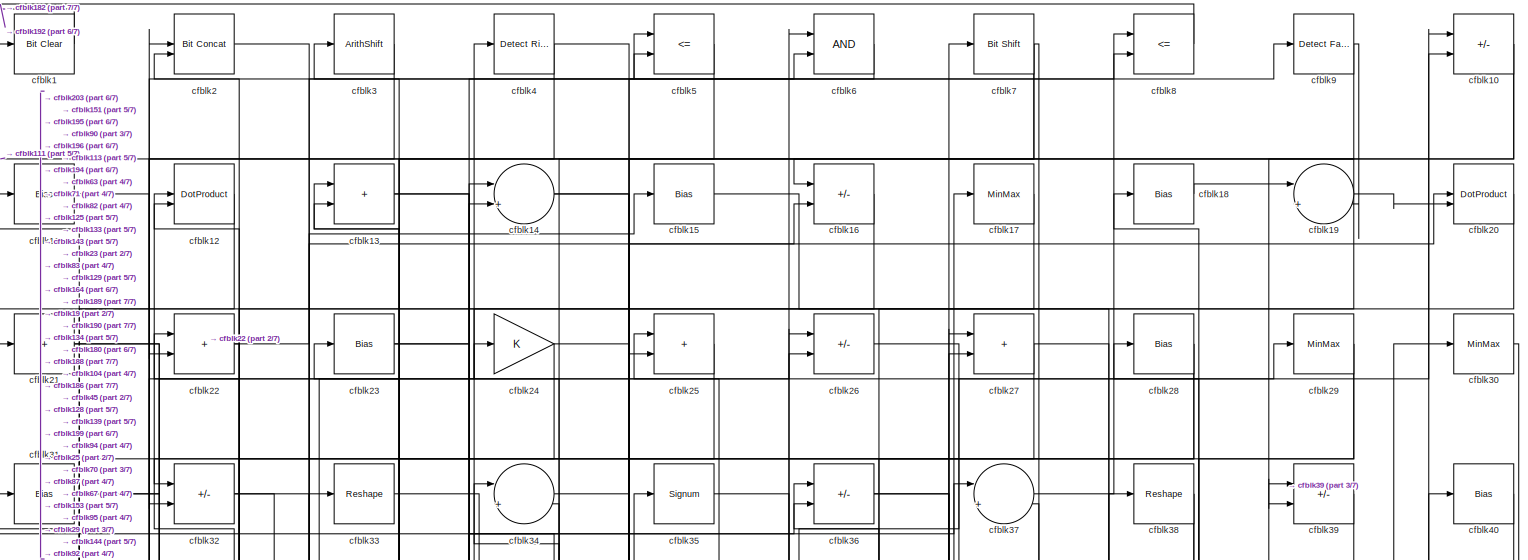
[diagram: root canvas - part 1/7, full width, top band]
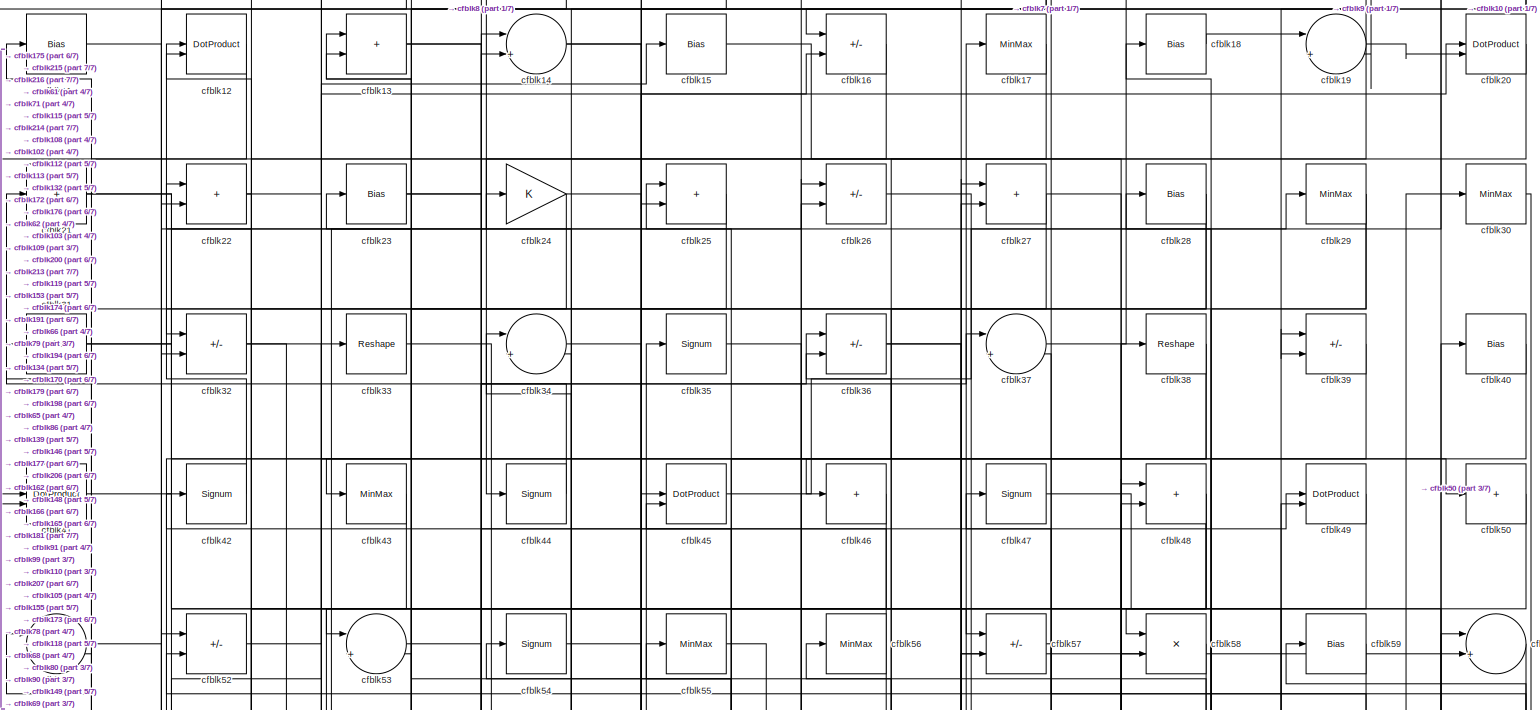
[diagram: root canvas - part 2/7, full width, top band]
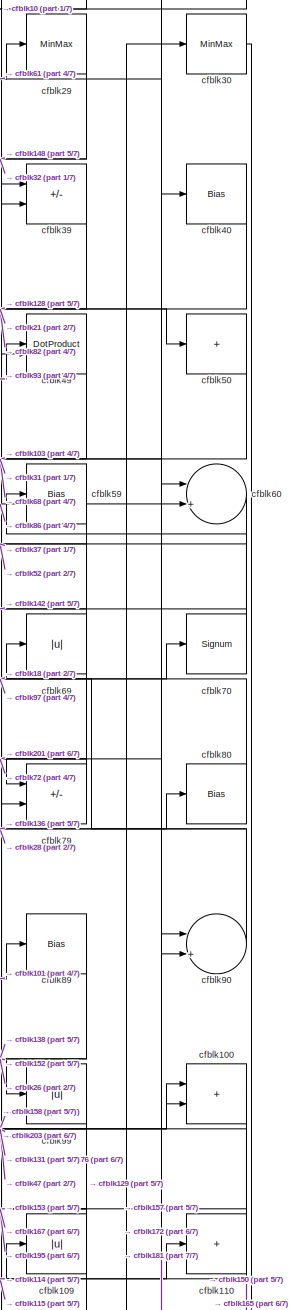
[diagram: root canvas - part 3/7, top right region]
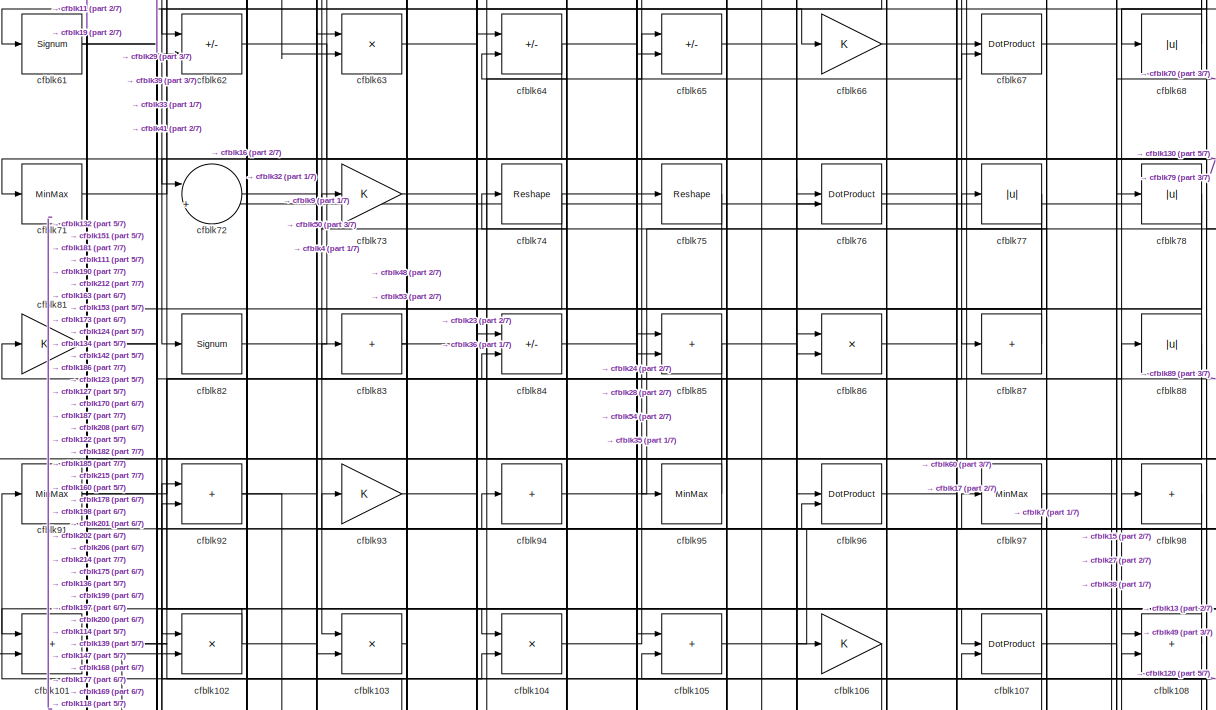
[diagram: root canvas - part 4/7, full width, middle band]
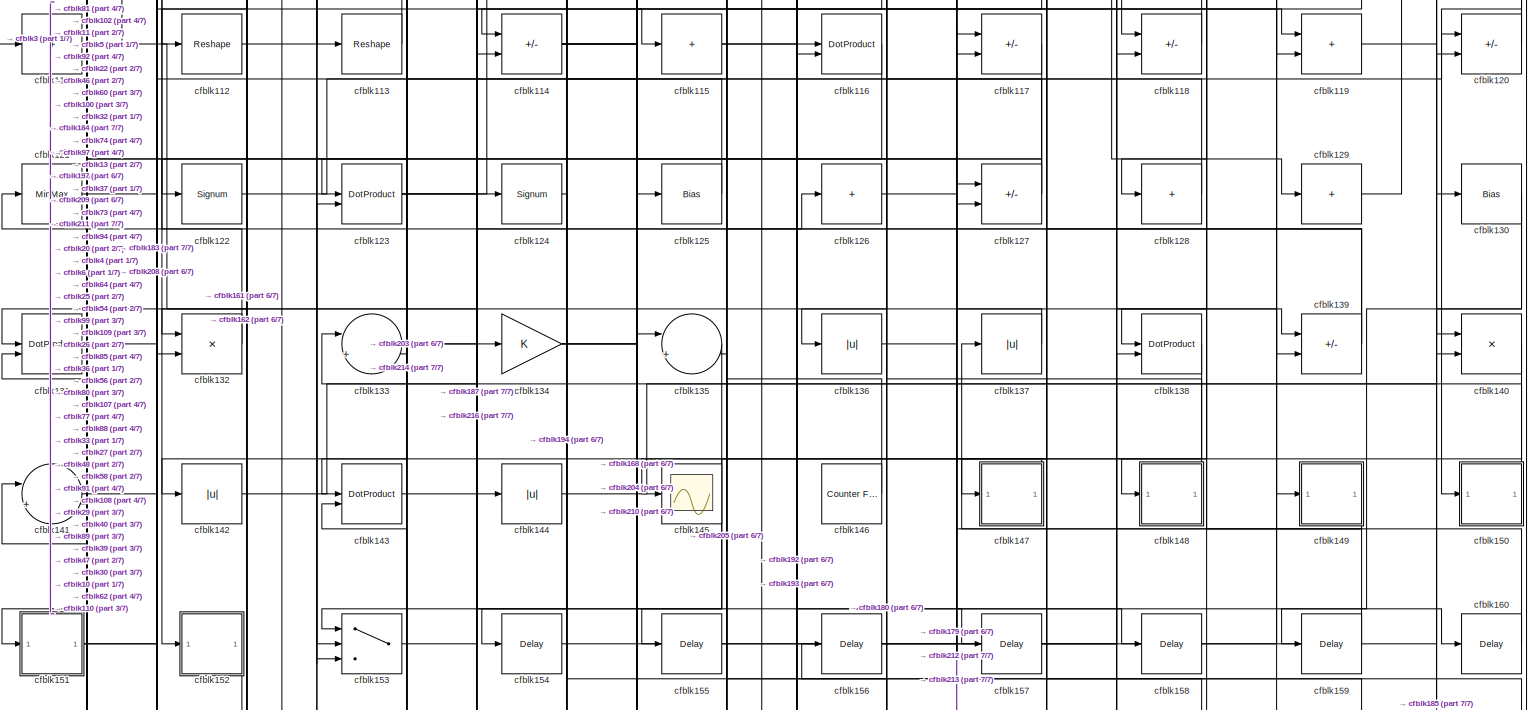
[diagram: root canvas - part 5/7, full width, middle band]
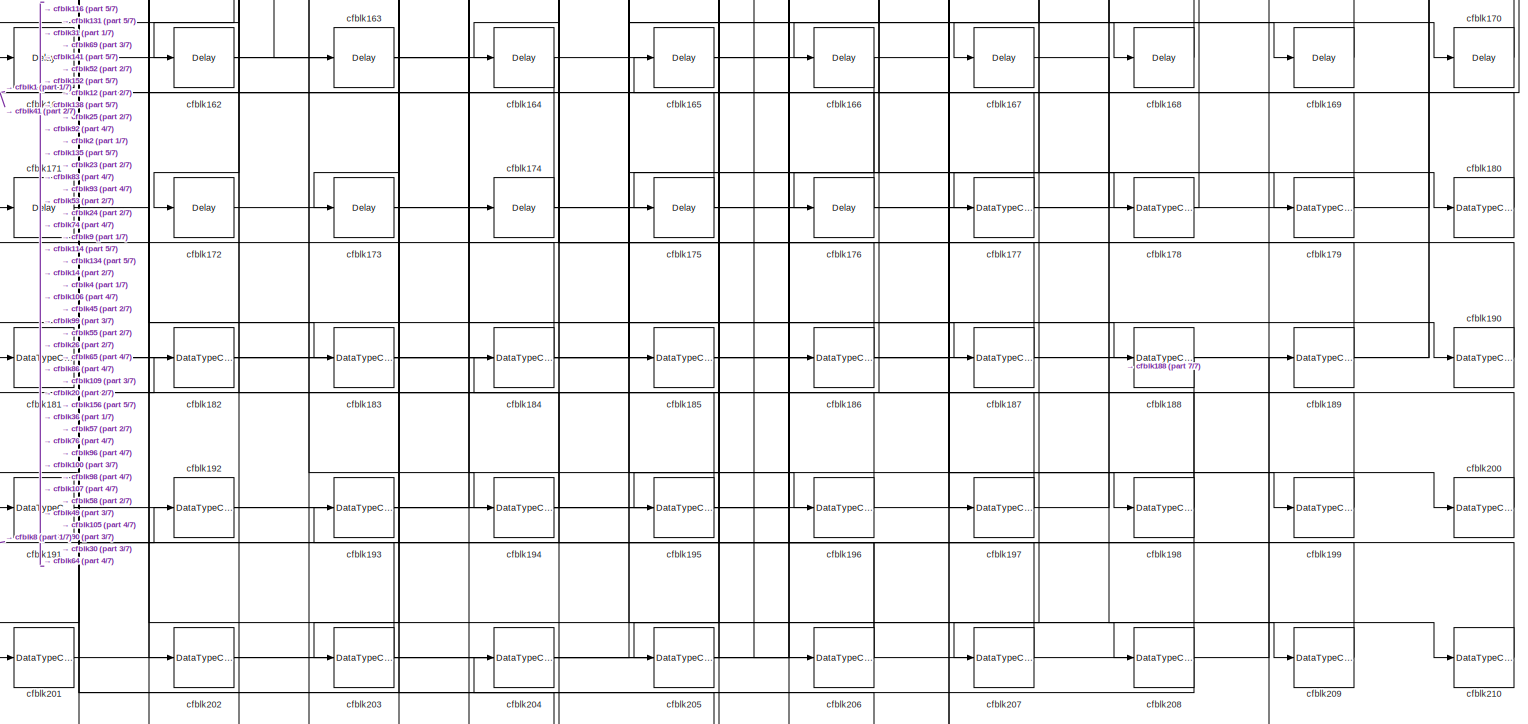
[diagram: root canvas - part 6/7, full width, bottom band]
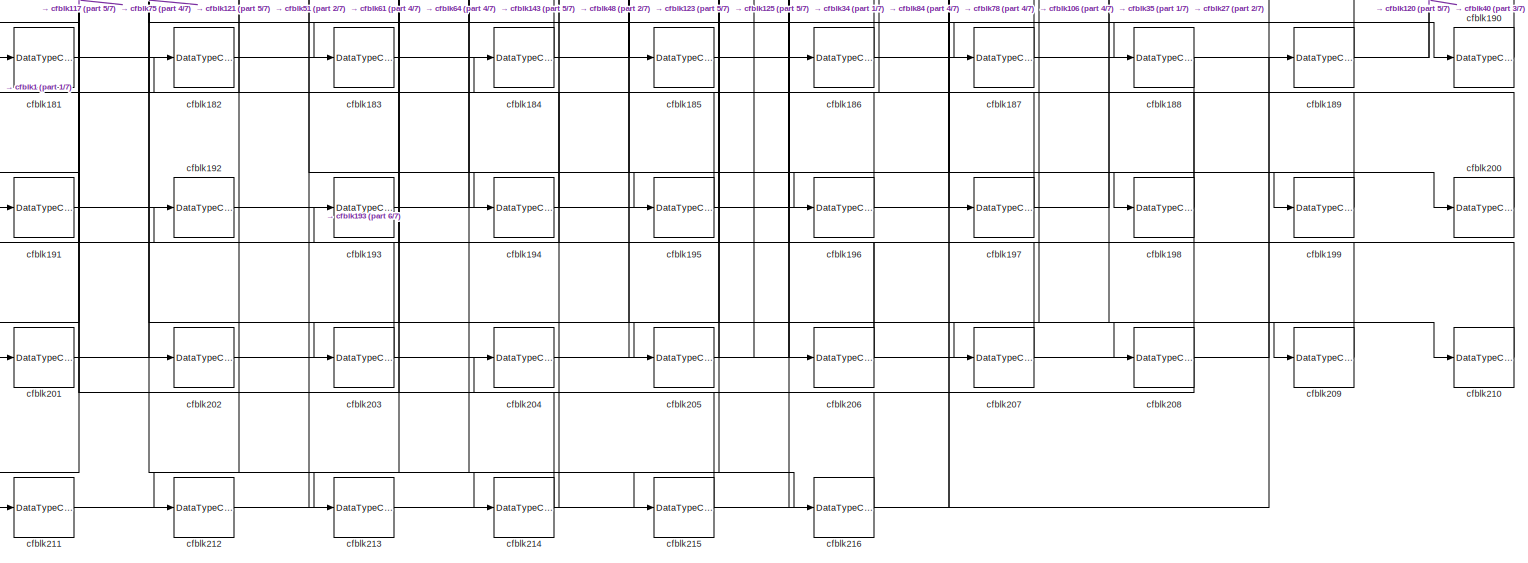
[diagram: root canvas - part 7/7, full width, bottom band]
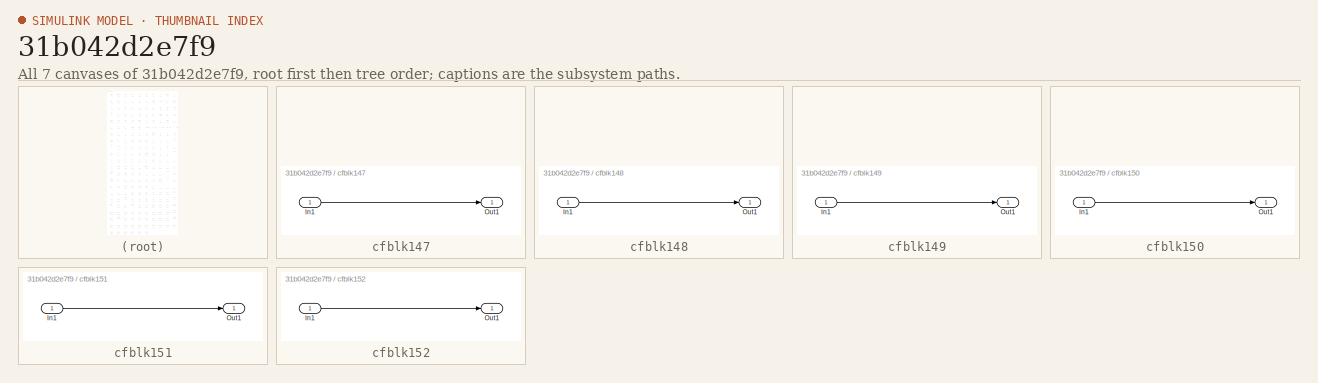
[diagram: thumbnail index - all 7 canvases of the model, root first then tree order]
MODEL slx_31b042d2e7f9
KIND model
CONFIG AbsTol = auto
CONFIG EnableMultiTasking = off
CONFIG FixedStep = auto
CONFIG MaxStep = auto
CONFIG MinStep = auto
CONFIG RelTol = 1e-3
CONFIG SampleTimeConstraint = Unconstrained
CONFIG SolverName = VariableStepAuto
CONFIG StartTime = 0.0
CONFIG StopTime = 10.0
BLOCK [Reference] cfblk1  REF=simulink/Logic and Bit
Operations/Bit Clear
  LibrarySourceBlock = hdlsllib/Logic and Bit\nOperations/Bit Clear
  SourceBlock = simulink/Logic and Bit\nOperations/Bit Clear
  SourceType = Bit Clear
BLOCK [Sum] cfblk10
  IconShape = rectangular
  Inputs = +-
BLOCK [Sum] cfblk100
  IconShape = rectangular
BLOCK [Sum] cfblk101
  IconShape = rectangular
BLOCK [Product] cfblk102
  Inputs = */
  RndMeth = Zero
  SaturateOnIntegerOverflow = on
BLOCK [Product] cfblk103
  Inputs = */
  RndMeth = Zero
  SaturateOnIntegerOverflow = on
BLOCK [Product] cfblk104
  Inputs = */
  RndMeth = Zero
  SaturateOnIntegerOverflow = on
BLOCK [Sum] cfblk105
  IconShape = rectangular
BLOCK [Gain] cfblk106
BLOCK [DotProduct] cfblk107
  OutDataTypeStr = Inherit: Inherit via internal rule
BLOCK [Sum] cfblk108
  IconShape = rectangular
BLOCK [Abs] cfblk109
  SaturateOnIntegerOverflow = off
BLOCK [Bias] cfblk11
  Bias = 0.0
  SaturateOnIntegerOverflow = off
BLOCK [Sum] cfblk110
  IconShape = rectangular
  Inputs = +
BLOCK [Sum] cfblk111
  IconShape = rectangular
  Inputs = +
BLOCK [Reshape] cfblk112
BLOCK [Reshape] cfblk113
BLOCK [Sum] cfblk114
  IconShape = rectangular
  Inputs = +-
BLOCK [Sum] cfblk115
  IconShape = rectangular
  Inputs = +
BLOCK [DotProduct] cfblk116
  OutDataTypeStr = Inherit: Inherit via internal rule
BLOCK [Sum] cfblk117
  IconShape = rectangular
  Inputs = +-
BLOCK [Sum] cfblk118
  IconShape = rectangular
  Inputs = +-
BLOCK [Sum] cfblk119
  IconShape = rectangular
BLOCK [DotProduct] cfblk12
  OutDataTypeStr = Inherit: Inherit via internal rule
BLOCK [Sum] cfblk120
  IconShape = rectangular
  Inputs = +-
BLOCK [MinMax] cfblk121
BLOCK [Signum] cfblk122
BLOCK [DotProduct] cfblk123
  OutDataTypeStr = Inherit: Inherit via internal rule
BLOCK [Signum] cfblk124
BLOCK [Bias] cfblk125
  Bias = 0.0
  SaturateOnIntegerOverflow = off
BLOCK [Sum] cfblk126
  IconShape = rectangular
  Inputs = +
BLOCK [Sum] cfblk127
  IconShape = rectangular
  Inputs = +-
BLOCK [Sum] cfblk128
  IconShape = rectangular
  Inputs = +
BLOCK [Sum] cfblk129
  IconShape = rectangular
  Inputs = +
BLOCK [Sum] cfblk13
  IconShape = rectangular
BLOCK [Bias] cfblk130
  Bias = 0.0
  SaturateOnIntegerOverflow = off
BLOCK [DotProduct] cfblk131
  OutDataTypeStr = Inherit: Inherit via internal rule
BLOCK [Product] cfblk132
  Inputs = */
  RndMeth = Zero
  SaturateOnIntegerOverflow = on
BLOCK [Sum] cfblk133
  Inputs = |++
BLOCK [Gain] cfblk134
BLOCK [Sum] cfblk135
  Inputs = |++
BLOCK [Abs] cfblk136
  SaturateOnIntegerOverflow = off
BLOCK [Abs] cfblk137
  SaturateOnIntegerOverflow = off
BLOCK [DotProduct] cfblk138
  OutDataTypeStr = Inherit: Inherit via internal rule
BLOCK [Sum] cfblk139
  IconShape = rectangular
  Inputs = +-
BLOCK [Sum] cfblk14
  Inputs = |++
BLOCK [Product] cfblk140
  Inputs = */
  RndMeth = Zero
  SaturateOnIntegerOverflow = on
BLOCK [Sum] cfblk141
  Inputs = |++
BLOCK [Abs] cfblk142
  SaturateOnIntegerOverflow = off
BLOCK [DotProduct] cfblk143
  OutDataTypeStr = Inherit: Inherit via internal rule
BLOCK [Abs] cfblk144
  SaturateOnIntegerOverflow = off
BLOCK [Scope] cfblk145
  Floating = off
  NumInputPorts = 1
  ScopeSpecificationString = Simulink.scopes.TimeScopeBlockCfg('CurrentConfiguration', extmgr.ConfigurationSet(extmgr.Configuration('Core','General UI',true),extmgr.Configuration('Core','Source UI',true),extmgr.Configuration('Sources','WiredSimulink',true,'DataLoggingVariableName','ScopeData2','DataLoggingSaveFormat','Array','DataLoggingLimitDataPoints',true,'DataLoggingDecimation','1'),extmgr.Configuration('Visuals','Time Do...<+868ch>
BLOCK [Reference] cfblk146  REF=hdlsllib/Sources/Counter
Free-Running
  SourceBlock = hdlsllib/Sources/Counter\nFree-Running
  SourceType = Counter Free-Running
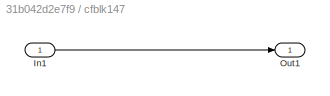
BLOCK [SubSystem] cfblk147
  LibrarySourceBlock = hdlsllib/Ports &\nSubsystems/Subsystem
BLOCK [Inport] cfblk147/In1
BLOCK [Outport] cfblk147/Out1
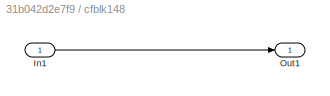
BLOCK [SubSystem] cfblk148
  LibrarySourceBlock = hdlsllib/Ports &\nSubsystems/Subsystem
BLOCK [Inport] cfblk148/In1
BLOCK [Outport] cfblk148/Out1
BLOCK [SubSystem] cfblk149
  LibrarySourceBlock = hdlsllib/Ports &\nSubsystems/Subsystem
BLOCK [Inport] cfblk149/In1
BLOCK [Outport] cfblk149/Out1
BLOCK [Bias] cfblk15
  Bias = 0.0
  SaturateOnIntegerOverflow = off
BLOCK [SubSystem] cfblk150
  LibrarySourceBlock = hdlsllib/Ports &\nSubsystems/Subsystem
BLOCK [Inport] cfblk150/In1
BLOCK [Outport] cfblk150/Out1
BLOCK [SubSystem] cfblk151
  LibrarySourceBlock = hdlsllib/Ports &\nSubsystems/Subsystem
BLOCK [Inport] cfblk151/In1
BLOCK [Outport] cfblk151/Out1
BLOCK [SubSystem] cfblk152
  LibrarySourceBlock = hdlsllib/Ports &\nSubsystems/Subsystem
BLOCK [Inport] cfblk152/In1
BLOCK [Outport] cfblk152/Out1
BLOCK [Switch] cfblk153
  InputSameDT = off
  SaturateOnIntegerOverflow = off
BLOCK [Delay] cfblk154
  InputPortMap = u0
  SampleTime = 1
BLOCK [Delay] cfblk155
  InputPortMap = u0
  SampleTime = 1
BLOCK [Delay] cfblk156
  InputPortMap = u0
  SampleTime = 1
BLOCK [Delay] cfblk157
  InputPortMap = u0
  SampleTime = 1
BLOCK [Delay] cfblk158
  InputPortMap = u0
  SampleTime = 1
BLOCK [Delay] cfblk159
  InputPortMap = u0
  SampleTime = 1
BLOCK [Sum] cfblk16
  IconShape = rectangular
  Inputs = +-
BLOCK [Delay] cfblk160
  InputPortMap = u0
  SampleTime = 1
BLOCK [Delay] cfblk161
  InputPortMap = u0
  SampleTime = 1
BLOCK [Delay] cfblk162
  InputPortMap = u0
  SampleTime = 1
BLOCK [Delay] cfblk163
  InputPortMap = u0
  SampleTime = 1
BLOCK [Delay] cfblk164
  InputPortMap = u0
  SampleTime = 1
BLOCK [Delay] cfblk165
  InputPortMap = u0
  SampleTime = 1
BLOCK [Delay] cfblk166
  InputPortMap = u0
  SampleTime = 1
BLOCK [Delay] cfblk167
  InputPortMap = u0
  SampleTime = 1
BLOCK [Delay] cfblk168
  InputPortMap = u0
  SampleTime = 1
BLOCK [Delay] cfblk169
  InputPortMap = u0
  SampleTime = 1
BLOCK [MinMax] cfblk17
BLOCK [Delay] cfblk170
  InputPortMap = u0
  SampleTime = 1
BLOCK [Delay] cfblk171
  InputPortMap = u0
  SampleTime = 1
BLOCK [Delay] cfblk172
  InputPortMap = u0
  SampleTime = 1
BLOCK [Delay] cfblk173
  InputPortMap = u0
  SampleTime = 1
BLOCK [Delay] cfblk174
  InputPortMap = u0
  SampleTime = 1
BLOCK [Delay] cfblk175
  InputPortMap = u0
  SampleTime = 1
BLOCK [Delay] cfblk176
  InputPortMap = u0
  SampleTime = 1
BLOCK [DataTypeConversion] cfblk177
  OutDataTypeStr = uint8
  RndMeth = Floor
  SaturateOnIntegerOverflow = off
BLOCK [DataTypeConversion] cfblk178
  OutDataTypeStr = uint8
  RndMeth = Floor
  SaturateOnIntegerOverflow = off
BLOCK [DataTypeConversion] cfblk179
  OutDataTypeStr = uint8
  RndMeth = Floor
  SaturateOnIntegerOverflow = off
BLOCK [Bias] cfblk18
  Bias = 0.0
  SaturateOnIntegerOverflow = off
BLOCK [DataTypeConversion] cfblk180
  OutDataTypeStr = uint8
  RndMeth = Floor
  SaturateOnIntegerOverflow = off
BLOCK [DataTypeConversion] cfblk181
  RndMeth = Floor
  SaturateOnIntegerOverflow = off
BLOCK [DataTypeConversion] cfblk182
  OutDataTypeStr = uint8
  RndMeth = Floor
  SaturateOnIntegerOverflow = off
BLOCK [DataTypeConversion] cfblk183
  OutDataTypeStr = uint8
  RndMeth = Floor
  SaturateOnIntegerOverflow = off
BLOCK [DataTypeConversion] cfblk184
  OutDataTypeStr = uint8
  RndMeth = Floor
  SaturateOnIntegerOverflow = off
BLOCK [DataTypeConversion] cfblk185
  OutDataTypeStr = uint8
  RndMeth = Floor
  SaturateOnIntegerOverflow = off
BLOCK [DataTypeConversion] cfblk186
  OutDataTypeStr = uint8
  RndMeth = Floor
  SaturateOnIntegerOverflow = off
BLOCK [DataTypeConversion] cfblk187
  OutDataTypeStr = uint8
  RndMeth = Floor
  SaturateOnIntegerOverflow = off
BLOCK [DataTypeConversion] cfblk188
  OutDataTypeStr = uint8
  RndMeth = Floor
  SaturateOnIntegerOverflow = off
BLOCK [DataTypeConversion] cfblk189
  OutDataTypeStr = uint8
  RndMeth = Floor
  SaturateOnIntegerOverflow = off
BLOCK [Sum] cfblk19
  Inputs = |++
BLOCK [DataTypeConversion] cfblk190
  OutDataTypeStr = uint8
  RndMeth = Floor
  SaturateOnIntegerOverflow = off
BLOCK [DataTypeConversion] cfblk191
  RndMeth = Floor
  SaturateOnIntegerOverflow = off
BLOCK [DataTypeConversion] cfblk192
  OutDataTypeStr = uint8
  RndMeth = Floor
  SaturateOnIntegerOverflow = off
BLOCK [DataTypeConversion] cfblk193
  OutDataTypeStr = uint8
  RndMeth = Floor
  SaturateOnIntegerOverflow = off
BLOCK [DataTypeConversion] cfblk194
  RndMeth = Floor
  SaturateOnIntegerOverflow = off
BLOCK [DataTypeConversion] cfblk195
  OutDataTypeStr = uint8
  RndMeth = Floor
  SaturateOnIntegerOverflow = off
BLOCK [DataTypeConversion] cfblk196
  OutDataTypeStr = uint8
  RndMeth = Floor
  SaturateOnIntegerOverflow = off
BLOCK [DataTypeConversion] cfblk197
  OutDataTypeStr = uint8
  RndMeth = Floor
  SaturateOnIntegerOverflow = off
BLOCK [DataTypeConversion] cfblk198
  OutDataTypeStr = uint8
  RndMeth = Floor
  SaturateOnIntegerOverflow = off
BLOCK [DataTypeConversion] cfblk199
  OutDataTypeStr = uint8
  RndMeth = Floor
  SaturateOnIntegerOverflow = off
BLOCK [Reference] cfblk2  REF=hdlsllib/Logic and Bit
Operations/Bit Concat
  SourceBlock = hdlsllib/Logic and Bit\nOperations/Bit Concat
  SourceType = Bit Concat
BLOCK [DotProduct] cfblk20
  OutDataTypeStr = Inherit: Inherit via internal rule
BLOCK [DataTypeConversion] cfblk200
  OutDataTypeStr = uint8
  RndMeth = Floor
  SaturateOnIntegerOverflow = off
BLOCK [DataTypeConversion] cfblk201
  OutDataTypeStr = uint8
  RndMeth = Floor
  SaturateOnIntegerOverflow = off
BLOCK [DataTypeConversion] cfblk202
  OutDataTypeStr = uint8
  RndMeth = Floor
  SaturateOnIntegerOverflow = off
BLOCK [DataTypeConversion] cfblk203
  RndMeth = Floor
  SaturateOnIntegerOverflow = off
BLOCK [DataTypeConversion] cfblk204
  OutDataTypeStr = uint8
  RndMeth = Floor
  SaturateOnIntegerOverflow = off
BLOCK [DataTypeConversion] cfblk205
  OutDataTypeStr = uint8
  RndMeth = Floor
  SaturateOnIntegerOverflow = off
BLOCK [DataTypeConversion] cfblk206
  RndMeth = Floor
  SaturateOnIntegerOverflow = off
BLOCK [DataTypeConversion] cfblk207
  OutDataTypeStr = uint8
  RndMeth = Floor
  SaturateOnIntegerOverflow = off
BLOCK [DataTypeConversion] cfblk208
  RndMeth = Floor
  SaturateOnIntegerOverflow = off
BLOCK [DataTypeConversion] cfblk209
  OutDataTypeStr = uint8
  RndMeth = Floor
  SaturateOnIntegerOverflow = off
BLOCK [Sum] cfblk21
  IconShape = rectangular
  Inputs = +
BLOCK [DataTypeConversion] cfblk210
  OutDataTypeStr = uint8
  RndMeth = Floor
  SaturateOnIntegerOverflow = off
BLOCK [DataTypeConversion] cfblk211
  RndMeth = Floor
  SaturateOnIntegerOverflow = off
BLOCK [DataTypeConversion] cfblk212
  OutDataTypeStr = uint8
  RndMeth = Floor
  SaturateOnIntegerOverflow = off
BLOCK [DataTypeConversion] cfblk213
  OutDataTypeStr = uint8
  RndMeth = Floor
  SaturateOnIntegerOverflow = off
BLOCK [DataTypeConversion] cfblk214
  RndMeth = Floor
  SaturateOnIntegerOverflow = off
BLOCK [DataTypeConversion] cfblk215
  OutDataTypeStr = uint8
  RndMeth = Floor
  SaturateOnIntegerOverflow = off
BLOCK [DataTypeConversion] cfblk216
  OutDataTypeStr = uint8
  RndMeth = Floor
  SaturateOnIntegerOverflow = off
BLOCK [Sum] cfblk22
  IconShape = rectangular
BLOCK [Bias] cfblk23
  Bias = 0.0
  SaturateOnIntegerOverflow = off
BLOCK [Gain] cfblk24
BLOCK [Sum] cfblk25
  IconShape = rectangular
BLOCK [Sum] cfblk26
  IconShape = rectangular
  Inputs = +-
BLOCK [Sum] cfblk27
  IconShape = rectangular
BLOCK [Bias] cfblk28
  Bias = 0.0
  SaturateOnIntegerOverflow = off
BLOCK [MinMax] cfblk29
BLOCK [ArithShift] cfblk3
  BitShiftNumber = 8
  InputPortMap = u0
BLOCK [MinMax] cfblk30
BLOCK [Bias] cfblk31
  Bias = 0.0
  SaturateOnIntegerOverflow = off
BLOCK [Sum] cfblk32
  IconShape = rectangular
  Inputs = +-
BLOCK [Reshape] cfblk33
BLOCK [Sum] cfblk34
  Inputs = |++
BLOCK [Signum] cfblk35
BLOCK [Sum] cfblk36
  IconShape = rectangular
  Inputs = +-
BLOCK [Sum] cfblk37
  Inputs = |++
BLOCK [Reshape] cfblk38
BLOCK [Sum] cfblk39
  IconShape = rectangular
  Inputs = +-
BLOCK [Reference] cfblk4  REF=hdlsllib/Logic and Bit
Operations/Detect Rise
Positive
  SourceBlock = hdlsllib/Logic and Bit\nOperations/Detect Rise\nPositive
  SourceType = Detect Rise Positive
BLOCK [Bias] cfblk40
  Bias = 0.0
  SaturateOnIntegerOverflow = off
BLOCK [DotProduct] cfblk41
  OutDataTypeStr = Inherit: Inherit via internal rule
BLOCK [Signum] cfblk42
BLOCK [MinMax] cfblk43
BLOCK [Signum] cfblk44
BLOCK [DotProduct] cfblk45
  OutDataTypeStr = Inherit: Inherit via internal rule
BLOCK [Sum] cfblk46
  IconShape = rectangular
  Inputs = +
BLOCK [Signum] cfblk47
BLOCK [Sum] cfblk48
  IconShape = rectangular
BLOCK [DotProduct] cfblk49
  OutDataTypeStr = Inherit: Inherit via internal rule
BLOCK [RelationalOperator] cfblk5
  InputSameDT = off
  Operator = <=
  OutDataTypeStr = boolean
BLOCK [Sum] cfblk50
  IconShape = rectangular
  Inputs = +
BLOCK [Sum] cfblk51
  Inputs = |++
BLOCK [Sum] cfblk52
  IconShape = rectangular
  Inputs = +-
BLOCK [Sum] cfblk53
  Inputs = |++
BLOCK [Signum] cfblk54
BLOCK [MinMax] cfblk55
BLOCK [MinMax] cfblk56
BLOCK [Sum] cfblk57
  IconShape = rectangular
  Inputs = +-
BLOCK [Product] cfblk58
  Inputs = */
  RndMeth = Zero
  SaturateOnIntegerOverflow = on
BLOCK [Bias] cfblk59
  Bias = 0.0
  SaturateOnIntegerOverflow = off
BLOCK [Logic] cfblk6
  AllPortsSameDT = off
  OutDataTypeStr = boolean
BLOCK [Sum] cfblk60
  Inputs = |++
BLOCK [Signum] cfblk61
BLOCK [Sum] cfblk62
  IconShape = rectangular
  Inputs = +-
BLOCK [Product] cfblk63
  Inputs = */
  RndMeth = Zero
  SaturateOnIntegerOverflow = on
BLOCK [Sum] cfblk64
  IconShape = rectangular
  Inputs = +-
BLOCK [Sum] cfblk65
  IconShape = rectangular
  Inputs = +-
BLOCK [Gain] cfblk66
BLOCK [DotProduct] cfblk67
  OutDataTypeStr = Inherit: Inherit via internal rule
BLOCK [Abs] cfblk68
  SaturateOnIntegerOverflow = off
BLOCK [Abs] cfblk69
  SaturateOnIntegerOverflow = off
BLOCK [Reference] cfblk7  REF=hdlsllib/Logic and Bit
Operations/Bit Shift
  SourceBlock = hdlsllib/Logic and Bit\nOperations/Bit Shift
  SourceType = Bit Shift
BLOCK [Signum] cfblk70
BLOCK [MinMax] cfblk71
BLOCK [Sum] cfblk72
  Inputs = |++
BLOCK [Gain] cfblk73
BLOCK [Reshape] cfblk74
BLOCK [Reshape] cfblk75
BLOCK [DotProduct] cfblk76
  OutDataTypeStr = Inherit: Inherit via internal rule
BLOCK [Abs] cfblk77
  SaturateOnIntegerOverflow = off
BLOCK [Abs] cfblk78
  SaturateOnIntegerOverflow = off
BLOCK [Sum] cfblk79
  IconShape = rectangular
  Inputs = +-
BLOCK [RelationalOperator] cfblk8
  InputSameDT = off
  Operator = <=
  OutDataTypeStr = boolean
BLOCK [Bias] cfblk80
  Bias = 0.0
  SaturateOnIntegerOverflow = off
BLOCK [Gain] cfblk81
BLOCK [Signum] cfblk82
BLOCK [Sum] cfblk83
  IconShape = rectangular
  Inputs = +
BLOCK [Sum] cfblk84
  IconShape = rectangular
  Inputs = +-
BLOCK [Sum] cfblk85
  IconShape = rectangular
BLOCK [Product] cfblk86
  Inputs = */
  RndMeth = Zero
  SaturateOnIntegerOverflow = on
BLOCK [Sum] cfblk87
  IconShape = rectangular
  Inputs = +
BLOCK [Abs] cfblk88
  SaturateOnIntegerOverflow = off
BLOCK [Bias] cfblk89
  Bias = 0.0
  SaturateOnIntegerOverflow = off
BLOCK [Reference] cfblk9  REF=hdlsllib/Logic and Bit
Operations/Detect Fall
Negative
  SourceBlock = hdlsllib/Logic and Bit\nOperations/Detect Fall\nNegative
  SourceType = Detect Fall Negative
BLOCK [Sum] cfblk90
  Inputs = |++
BLOCK [MinMax] cfblk91
BLOCK [Sum] cfblk92
  IconShape = rectangular
BLOCK [Gain] cfblk93
BLOCK [Sum] cfblk94
  IconShape = rectangular
  Inputs = +
BLOCK [MinMax] cfblk95
BLOCK [DotProduct] cfblk96
  OutDataTypeStr = Inherit: Inherit via internal rule
BLOCK [MinMax] cfblk97
BLOCK [Sum] cfblk98
  IconShape = rectangular
  Inputs = +
BLOCK [Abs] cfblk99
  SaturateOnIntegerOverflow = off
LINE cfblk100:1 -> cfblk167:1
NET cfblk101:1 -> cfblk104:2, cfblk89:1
NET cfblk102:1 -> cfblk101:1, cfblk97:1
LINE cfblk103:1 -> cfblk53:2
LINE cfblk104:1 -> cfblk35:1
LINE cfblk105:1 -> cfblk48:2
LINE cfblk106:1 -> cfblk175:1
NET cfblk107:1 -> cfblk114:1, cfblk169:1
LINE cfblk108:1 -> cfblk11:1
NET cfblk109:1 -> cfblk13:2, cfblk176:1
NET cfblk10:1 -> cfblk22:2, cfblk39:2
NET cfblk110:1 -> cfblk150:1, cfblk47:1
NET cfblk111:1 -> cfblk102:2, cfblk144:1
LINE cfblk112:1 -> cfblk100:1
LINE cfblk113:1 -> cfblk22:1
NET cfblk114:1 -> cfblk110:1, cfblk119:1, cfblk168:1, cfblk85:2
NET cfblk115:1 -> cfblk109:1, cfblk26:1
LINE cfblk116:1 -> cfblk191:1
LINE cfblk117:1 -> cfblk211:1
LINE cfblk118:1 -> cfblk91:1
LINE cfblk119:1 -> cfblk140:1
LINE cfblk11:1 -> cfblk115:1
LINE cfblk120:1 -> cfblk92:2
LINE cfblk121:1 -> cfblk183:1
LINE cfblk122:1 -> cfblk85:1
NET cfblk123:1 -> cfblk187:1, cfblk216:1, cfblk65:1
LINE cfblk124:1 -> cfblk154:1
LINE cfblk125:1 -> cfblk3:1
LINE cfblk126:1 -> cfblk158:1
NET cfblk127:1 -> cfblk122:1, cfblk94:1
LINE cfblk128:1 -> cfblk36:1
LINE cfblk129:1 -> cfblk30:1
LINE cfblk12:1 -> cfblk41:2
NET cfblk130:1 -> cfblk140:2, cfblk159:1
LINE cfblk131:1 -> cfblk100:2
LINE cfblk132:1 -> cfblk81:1
NET cfblk133:1 -> cfblk126:1, cfblk157:1
NET cfblk134:1 -> cfblk20:1, cfblk210:1, cfblk6:2
LINE cfblk135:1 -> cfblk203:1
LINE cfblk136:1 -> cfblk80:1
LINE cfblk137:1 -> cfblk131:1
LINE cfblk138:1 -> cfblk162:1
NET cfblk139:1 -> cfblk25:1, cfblk77:1, cfblk92:1
NET cfblk13:1 -> cfblk119:2, cfblk79:1
LINE cfblk140:1 -> cfblk155:1
LINE cfblk141:1 -> cfblk208:1
LINE cfblk142:1 -> cfblk64:1
LINE cfblk143:1 -> cfblk37:1
LINE cfblk144:1 -> cfblk10:1
LINE cfblk146:1 -> cfblk54:1
LINE cfblk147/In1:1 -> cfblk147/Out1:1
LINE cfblk147:1 -> cfblk145:1
LINE cfblk148/In1:1 -> cfblk148/Out1:1
LINE cfblk148:1 -> cfblk56:1
LINE cfblk149/In1:1 -> cfblk149/Out1:1
LINE cfblk149:1 -> cfblk137:1
NET cfblk14:1 -> cfblk170:1, cfblk198:1
LINE cfblk150/In1:1 -> cfblk150/Out1:1
LINE cfblk150:1 -> cfblk133:1
LINE cfblk151/In1:1 -> cfblk151/Out1:1
NET cfblk151:1 -> cfblk120:1, cfblk5:2
LINE cfblk152/In1:1 -> cfblk152/Out1:1
LINE cfblk152:1 -> cfblk161:1
LINE cfblk153:1 -> cfblk14:2
LINE cfblk154:1 -> cfblk118:2
LINE cfblk155:1 -> cfblk48:1
LINE cfblk156:1 -> cfblk179:1
LINE cfblk157:1 -> cfblk60:1
LINE cfblk158:1 -> cfblk39:1
LINE cfblk159:1 -> cfblk127:1
LINE cfblk15:1 -> cfblk78:1
LINE cfblk160:1 -> cfblk108:2
LINE cfblk161:1 -> cfblk114:2
LINE cfblk162:1 -> cfblk26:2
LINE cfblk163:1 -> cfblk196:1
LINE cfblk164:1 -> cfblk1:1
LINE cfblk165:1 -> cfblk57:2
LINE cfblk166:1 -> cfblk205:1
LINE cfblk167:1 -> cfblk209:1
LINE cfblk168:1 -> cfblk107:2
LINE cfblk169:1 -> cfblk105:2
LINE cfblk16:1 -> cfblk62:1
LINE cfblk170:1 -> cfblk64:2
LINE cfblk171:1 -> cfblk202:1
LINE cfblk172:1 -> cfblk90:2
LINE cfblk173:1 -> cfblk58:2
LINE cfblk174:1 -> cfblk52:1
LINE cfblk175:1 -> cfblk41:1
LINE cfblk176:1 -> cfblk12:2
LINE cfblk177:1 -> cfblk45:2
LINE cfblk178:1 -> cfblk98:1
LINE cfblk179:1 -> cfblk45:1
LINE cfblk17:1 -> cfblk44:1
LINE cfblk180:1 -> cfblk156:1
NET cfblk181:1 -> cfblk27:1, cfblk27:2, cfblk40:1
LINE cfblk182:1 -> cfblk75:1
LINE cfblk183:1 -> cfblk125:1
LINE cfblk184:1 -> cfblk121:1
LINE cfblk185:1 -> cfblk120:2
LINE cfblk186:1 -> cfblk84:1
LINE cfblk187:1 -> cfblk84:2
LINE cfblk188:1 -> cfblk193:1
LINE cfblk189:1 -> cfblk34:1
LINE cfblk18:1 -> cfblk19:1
LINE cfblk190:1 -> cfblk34:2
NET cfblk191:1 -> cfblk14:1, cfblk171:1
LINE cfblk192:1 -> cfblk116:1
LINE cfblk193:1 -> cfblk116:2
NET cfblk194:1 -> cfblk138:2, cfblk24:1
LINE cfblk195:1 -> cfblk2:1
LINE cfblk196:1 -> cfblk2:2
LINE cfblk197:1 -> cfblk131:2
LINE cfblk198:1 -> cfblk96:1
LINE cfblk199:1 -> cfblk96:2
NET cfblk19:1 -> cfblk16:1, cfblk20:2, cfblk71:1
LINE cfblk1:1 -> cfblk182:1
LINE cfblk200:1 -> cfblk23:1
LINE cfblk201:1 -> cfblk76:1
LINE cfblk202:1 -> cfblk76:2
NET cfblk203:1 -> cfblk31:1, cfblk49:2
LINE cfblk204:1 -> cfblk135:1
LINE cfblk205:1 -> cfblk135:2
NET cfblk206:1 -> cfblk86:1, cfblk93:1
LINE cfblk207:1 -> cfblk55:1
NET cfblk208:1 -> cfblk204:1, cfblk74:1
LINE cfblk209:1 -> cfblk141:1
LINE cfblk20:1 -> cfblk166:1
LINE cfblk210:1 -> cfblk141:2
NET cfblk211:1 -> cfblk123:2, cfblk189:1
LINE cfblk212:1 -> cfblk117:1
LINE cfblk213:1 -> cfblk117:2
NET cfblk214:1 -> cfblk106:1, cfblk143:2, cfblk184:1
LINE cfblk215:1 -> cfblk51:1
LINE cfblk216:1 -> cfblk51:2
NET cfblk21:1 -> cfblk50:1, cfblk57:1
NET cfblk22:1 -> cfblk132:1, cfblk16:2
NET cfblk23:1 -> cfblk66:1, cfblk8:2
NET cfblk24:1 -> cfblk105:1, cfblk43:1
LINE cfblk25:1 -> cfblk172:1
LINE cfblk26:1 -> cfblk99:1
NET cfblk27:1 -> cfblk139:2, cfblk61:1
NET cfblk28:1 -> cfblk46:1, cfblk65:2
NET cfblk29:1 -> cfblk148:1, cfblk32:1
LINE cfblk2:1 -> cfblk194:1
LINE cfblk30:1 -> cfblk165:1
NET cfblk31:1 -> cfblk6:1, cfblk90:1
NET cfblk32:1 -> cfblk113:1, cfblk63:2
LINE cfblk33:1 -> cfblk129:1
LINE cfblk34:1 -> cfblk188:1
LINE cfblk35:1 -> cfblk186:1
NET cfblk36:1 -> cfblk139:1, cfblk199:1
LINE cfblk37:1 -> cfblk8:1
NET cfblk38:1 -> cfblk153:3, cfblk95:1
LINE cfblk39:1 -> cfblk82:1
LINE cfblk3:1 -> cfblk111:1
LINE cfblk40:1 -> cfblk128:1
LINE cfblk41:1 -> cfblk108:1
LINE cfblk42:1 -> cfblk12:1
LINE cfblk43:1 -> cfblk53:1
LINE cfblk44:1 -> cfblk21:1
LINE cfblk45:1 -> cfblk10:2
LINE cfblk46:1 -> cfblk112:1
LINE cfblk47:1 -> cfblk149:1
NET cfblk48:1 -> cfblk102:1, cfblk213:1, cfblk58:1
LINE cfblk49:1 -> cfblk68:1
NET cfblk4:1 -> cfblk133:2, cfblk180:1
LINE cfblk50:1 -> cfblk103:1
LINE cfblk51:1 -> cfblk214:1
LINE cfblk52:1 -> cfblk15:1
LINE cfblk53:1 -> cfblk174:1
LINE cfblk54:1 -> cfblk86:2
LINE cfblk55:1 -> cfblk206:1
NET cfblk56:1 -> cfblk132:2, cfblk42:1
LINE cfblk57:1 -> cfblk207:1
LINE cfblk58:1 -> cfblk118:1
LINE cfblk59:1 -> cfblk79:2
LINE cfblk5:1 -> cfblk143:1
LINE cfblk60:1 -> cfblk142:1
NET cfblk61:1 -> cfblk190:1, cfblk29:1
LINE cfblk62:1 -> cfblk130:1
LINE cfblk63:1 -> cfblk124:1
NET cfblk64:1 -> cfblk127:2, cfblk212:1
LINE cfblk65:1 -> cfblk178:1
LINE cfblk66:1 -> cfblk67:1
LINE cfblk67:1 -> cfblk38:1
LINE cfblk68:1 -> cfblk13:1
NET cfblk69:1 -> cfblk201:1, cfblk52:2
LINE cfblk6:1 -> cfblk5:1
NET cfblk70:1 -> cfblk37:2, cfblk59:1
LINE cfblk71:1 -> cfblk33:1
LINE cfblk72:1 -> cfblk63:1
LINE cfblk73:1 -> cfblk134:1
NET cfblk74:1 -> cfblk123:1, cfblk67:2
LINE cfblk75:1 -> cfblk181:1
LINE cfblk76:1 -> cfblk200:1
NET cfblk77:1 -> cfblk104:1, cfblk136:1
NET cfblk78:1 -> cfblk103:2, cfblk215:1
LINE cfblk79:1 -> cfblk72:1
NET cfblk7:1 -> cfblk25:2, cfblk32:2, cfblk87:1
LINE cfblk80:1 -> cfblk18:1
NET cfblk81:1 -> cfblk107:1, cfblk62:2
LINE cfblk82:1 -> cfblk4:1
NET cfblk83:1 -> cfblk173:1, cfblk36:2
LINE cfblk84:1 -> cfblk185:1
NET cfblk85:1 -> cfblk101:2, cfblk160:1
LINE cfblk86:1 -> cfblk60:2
LINE cfblk87:1 -> cfblk73:1
NET cfblk88:1 -> cfblk147:1, cfblk151:1, cfblk72:2
NET cfblk89:1 -> cfblk138:1, cfblk152:1
LINE cfblk8:1 -> cfblk192:1
NET cfblk90:1 -> cfblk28:1, cfblk69:1
NET cfblk91:1 -> cfblk17:1, cfblk88:1
NET cfblk92:1 -> cfblk163:1, cfblk9:1
LINE cfblk93:1 -> cfblk49:1
LINE cfblk94:1 -> cfblk7:1
LINE cfblk95:1 -> cfblk83:1
LINE cfblk96:1 -> cfblk197:1
NET cfblk97:1 -> cfblk153:1, cfblk70:1
LINE cfblk98:1 -> cfblk177:1
NET cfblk99:1 -> cfblk153:2, cfblk195:1
NET cfblk9:1 -> cfblk164:1, cfblk19:2
note: NET lines group one-source signal fan-out (src -> all destinations, sorted); 1:1 wires keep LINE
